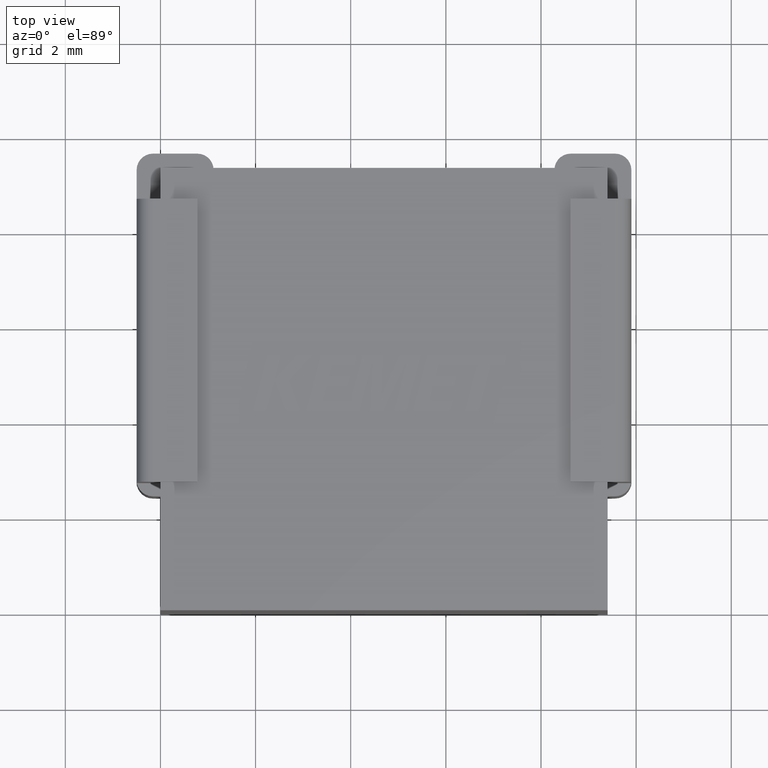
[diagram: clean part render]
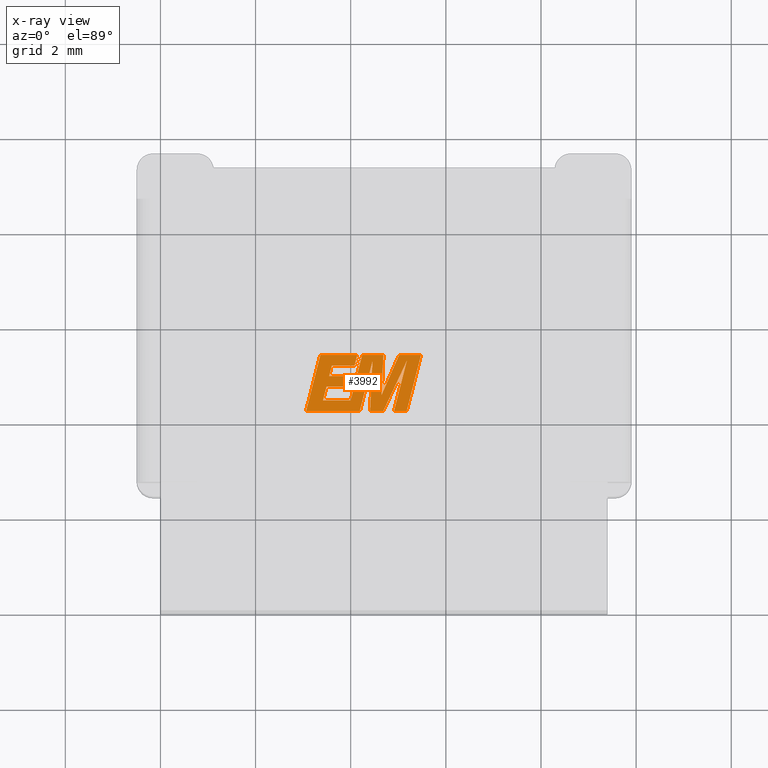
[diagram: x-ray — body ghosted, one internal face saturated and labeled with its STEP entity id]
A machine part, top view, then the same camera in x-ray: the body is ghosted and one INTERNAL B-rep face — a face not visible from any outside direction — is saturated and labeled: STEP entity #3992.
In plain terms, the highlighted planar face has unit normal (0, 0, -1).
Its self-contained STEP definition (entity closure, byte-faithful):
#22 = LINE ( 'NONE', #2866, #2343 ) ;
#36 = LINE ( 'NONE', #2173, #4210 ) ;
#38 = DIRECTION ( 'NONE',  ( -1.000000000000000000, 0.000000000000000000, 0.000000000000000000 ) ) ;
#59 = EDGE_CURVE ( 'NONE', #4463, #4007, #1487, .T. ) ;
#79 = LINE ( 'NONE', #1834, #4469 ) ;
#164 = DIRECTION ( 'NONE',  ( 0.000000000000000000, 0.000000000000000000, -1.000000000000000000 ) ) ;
#176 = EDGE_CURVE ( 'NONE', #3254, #557, #1877, .T. ) ;
#180 = DIRECTION ( 'NONE',  ( 0.2470122048320955999, 0.9690123686847278428, 0.000000000000000000 ) ) ;
#262 = DIRECTION ( 'NONE',  ( 0.2449294970219921819, 0.9695408921177867123, 0.000000000000000000 ) ) ;
#264 = DIRECTION ( 'NONE',  ( 0.2498128263339639277, 0.9682941452880093891, 0.000000000000000000 ) ) ;
#287 = EDGE_CURVE ( 'NONE', #717, #292, #36, .T. ) ;
#288 = LINE ( 'NONE', #1319, #2571 ) ;
#291 = EDGE_CURVE ( 'NONE', #585, #2966, #3868, .T. ) ;
#292 = VERTEX_POINT ( 'NONE', #312 ) ;
#309 = CARTESIAN_POINT ( 'NONE',  ( 4.241897461586543017, 5.366262998339186296, 0.000000000000000000 ) ) ;
#312 = CARTESIAN_POINT ( 'NONE',  ( 4.687921501937565516, 5.366262998339186296, 0.000000000000000000 ) ) ;
#317 = DIRECTION ( 'NONE',  ( 0.2441965488560581266, 0.9697257578959067592, 0.000000000000000000 ) ) ;
#474 = DIRECTION ( 'NONE',  ( -1.000000000000000000, 0.000000000000000000, 0.000000000000000000 ) ) ;
#475 = EDGE_CURVE ( 'NONE', #2202, #763, #3473, .T. ) ;
#477 = ORIENTED_EDGE ( 'NONE', *, *, #1860, .F. ) ;
#517 = EDGE_CURVE ( 'NONE', #2524, #2413, #288, .T. ) ;
#520 = ORIENTED_EDGE ( 'NONE', *, *, #59, .F. ) ;
#531 = CARTESIAN_POINT ( 'NONE',  ( 3.941175055195856647, 4.703325914129568019, 0.000000000000000000 ) ) ;
#544 = CARTESIAN_POINT ( 'NONE',  ( 3.062312293114819894, 4.184999999999998721, 0.000000000000000000 ) ) ;
#557 = VERTEX_POINT ( 'NONE', #3028 ) ;
#559 = VECTOR ( 'NONE', #1431, 1000.000000000000227 ) ;
#566 = EDGE_CURVE ( 'NONE', #644, #4578, #3863, .T. ) ;
#567 = CARTESIAN_POINT ( 'NONE',  ( 4.406076379557794631, 4.185000000000000497, 0.000000000000000000 ) ) ;
#585 = VERTEX_POINT ( 'NONE', #2842 ) ;
#594 = CARTESIAN_POINT ( 'NONE',  ( 3.941175055195856647, 4.703325914129568019, 0.000000000000000000 ) ) ;
#620 = ORIENTED_EDGE ( 'NONE', *, *, #475, .F. ) ;
#644 = VERTEX_POINT ( 'NONE', #2526 ) ;
#659 = LINE ( 'NONE', #309, #706 ) ;
#663 = EDGE_CURVE ( 'NONE', #1832, #2451, #659, .T. ) ;
#674 = CARTESIAN_POINT ( 'NONE',  ( 5.018742207986084836, 5.366262998339186296, 0.000000000000000000 ) ) ;
#678 = EDGE_CURVE ( 'NONE', #2451, #2043, #2547, .T. ) ;
#698 = VECTOR ( 'NONE', #1975, 1000.000000000000000 ) ;
#706 = VECTOR ( 'NONE', #1736, 1000.000000000000114 ) ;
#717 = VERTEX_POINT ( 'NONE', #4337 ) ;
#735 = VECTOR ( 'NONE', #474, 1000.000000000000000 ) ;
#763 = VERTEX_POINT ( 'NONE', #3279 ) ;
#766 = VECTOR ( 'NONE', #38, 1000.000000000000000 ) ;
#789 = ORIENTED_EDGE ( 'NONE', *, *, #287, .F. ) ;
#820 = EDGE_CURVE ( 'NONE', #2413, #1497, #4090, .T. ) ;
#948 = VECTOR ( 'NONE', #1072, 1000.000000000000000 ) ;
#963 = CARTESIAN_POINT ( 'NONE',  ( 3.546948208617191955, 4.921700921080024216, 0.000000000000000000 ) ) ;
#1003 = VECTOR ( 'NONE', #4025, 1000.000000000000227 ) ;
#1031 = CARTESIAN_POINT ( 'NONE',  ( 4.458341037021869013, 5.236647398152669552, 0.000000000000000000 ) ) ;
#1035 = EDGE_CURVE ( 'NONE', #4310, #3297, #4431, .T. ) ;
#1050 = CARTESIAN_POINT ( 'NONE',  ( 3.417541273402175950, 4.409736001990648191, 0.000000000000000000 ) ) ;
#1063 = CARTESIAN_POINT ( 'NONE',  ( 3.363693899958266620, 5.366262998339186296, 0.000000000000000000 ) ) ;
#1072 = DIRECTION ( 'NONE',  ( 1.000000000000000000, 4.326970063275049302E-15, 0.000000000000000000 ) ) ;
#1140 = DIRECTION ( 'NONE',  ( -0.4025369940904171551, -0.9154037187976961087, 0.000000000000000000 ) ) ;
#1141 = ORIENTED_EDGE ( 'NONE', *, *, #663, .F. ) ;
#1209 = EDGE_CURVE ( 'NONE', #3297, #1773, #4255, .T. ) ;
#1239 = EDGE_CURVE ( 'NONE', #1279, #3254, #22, .T. ) ;
#1279 = VERTEX_POINT ( 'NONE', #2464 ) ;
#1319 = CARTESIAN_POINT ( 'NONE',  ( 3.491709191532832879, 4.703325914129568019, 0.000000000000000000 ) ) ;
#1396 = LINE ( 'NONE', #1444, #2482 ) ;
#1431 = DIRECTION ( 'NONE',  ( -0.2472157836259321062, -0.9689604513736440605, 0.000000000000000000 ) ) ;
#1444 = CARTESIAN_POINT ( 'NONE',  ( 4.137431837443122262, 5.366262998339186296, 0.000000000000000000 ) ) ;
#1470 = VECTOR ( 'NONE', #1548, 1000.000000000000000 ) ;
#1477 = LINE ( 'NONE', #3610, #1470 ) ;
#1487 = LINE ( 'NONE', #3979, #4062 ) ;
#1497 = VERTEX_POINT ( 'NONE', #2507 ) ;
#1548 = DIRECTION ( 'NONE',  ( 1.000000000000000000, 0.000000000000000000, 0.000000000000000000 ) ) ;
#1556 = VECTOR ( 'NONE', #4089, 1000.000000000000000 ) ;
#1591 = LINE ( 'NONE', #2704, #1556 ) ;
#1619 = ORIENTED_EDGE ( 'NONE', *, *, #291, .F. ) ;
#1736 = DIRECTION ( 'NONE',  ( -0.2469556664503825827, -0.9690267792006819203, 0.000000000000000000 ) ) ;
#1740 = VECTOR ( 'NONE', #2138, 1000.000000000000114 ) ;
#1773 = VERTEX_POINT ( 'NONE', #674 ) ;
#1832 = VERTEX_POINT ( 'NONE', #4222 ) ;
#1834 = CARTESIAN_POINT ( 'NONE',  ( 5.018742207986084836, 5.366262998339186296, 0.000000000000000000 ) ) ;
#1851 = CARTESIAN_POINT ( 'NONE',  ( 3.491709191532832879, 4.703325914129568019, 0.000000000000000000 ) ) ;
#1860 = EDGE_CURVE ( 'NONE', #2966, #3604, #2819, .T. ) ;
#1877 = LINE ( 'NONE', #4377, #1003 ) ;
#1905 = EDGE_LOOP ( 'NONE', ( #2805, #2755, #1944, #2118, #3038, #4244, #477, #1619, #1948, #3360, #3252, #520, #2144, #620, #4102, #2276, #3303, #2035, #4546, #1141, #3187, #789, #2057 ) ) ;
#1906 = VECTOR ( 'NONE', #264, 1000.000000000000114 ) ;
#1944 = ORIENTED_EDGE ( 'NONE', *, *, #3715, .F. ) ;
#1948 = ORIENTED_EDGE ( 'NONE', *, *, #3335, .F. ) ;
#1953 = CARTESIAN_POINT ( 'NONE',  ( 3.417541273402175950, 4.409736001990648191, 0.000000000000000000 ) ) ;
#1975 = DIRECTION ( 'NONE',  ( 1.000000000000000000, 0.000000000000000000, 0.000000000000000000 ) ) ;
#2035 = ORIENTED_EDGE ( 'NONE', *, *, #2701, .F. ) ;
#2043 = VERTEX_POINT ( 'NONE', #1050 ) ;
#2057 = ORIENTED_EDGE ( 'NONE', *, *, #4539, .F. ) ;
#2068 = CARTESIAN_POINT ( 'NONE',  ( 0.5575948574780167366, -0.08786507851400812696, 0.000000000000000000 ) ) ;
#2102 = CARTESIAN_POINT ( 'NONE',  ( 4.190616825896835707, 4.185000000000000497, 0.000000000000000000 ) ) ;
#2105 = CARTESIAN_POINT ( 'NONE',  ( 5.478097366396747603, 5.366262998339186296, 0.000000000000000000 ) ) ;
#2118 = ORIENTED_EDGE ( 'NONE', *, *, #176, .F. ) ;
#2138 = DIRECTION ( 'NONE',  ( 0.2454965240435175722, 0.9693974709491203212, 0.000000000000000000 ) ) ;
#2144 = ORIENTED_EDGE ( 'NONE', *, *, #2813, .F. ) ;
#2149 = DIRECTION ( 'NONE',  ( 0.2467071005570951048, 0.9690900920630193260, 0.000000000000000000 ) ) ;
#2173 = CARTESIAN_POINT ( 'NONE',  ( 4.647643891802699656, 4.522353534958212684, 0.000000000000000000 ) ) ;
#2181 = CARTESIAN_POINT ( 'NONE',  ( 5.176980077148535031, 4.185000000000000497, 0.000000000000000000 ) ) ;
#2184 = EDGE_CURVE ( 'NONE', #4007, #644, #1396, .T. ) ;
#2202 = VERTEX_POINT ( 'NONE', #3205 ) ;
#2258 = LINE ( 'NONE', #3268, #735 ) ;
#2276 = ORIENTED_EDGE ( 'NONE', *, *, #820, .F. ) ;
#2343 = VECTOR ( 'NONE', #2552, 1000.000000000000227 ) ;
#2390 = FACE_OUTER_BOUND ( 'NONE', #1905, .T. ) ;
#2394 = LINE ( 'NONE', #1953, #2578 ) ;
#2407 = LINE ( 'NONE', #4534, #698 ) ;
#2410 = VECTOR ( 'NONE', #180, 1000.000000000000000 ) ;
#2413 = VERTEX_POINT ( 'NONE', #594 ) ;
#2451 = VERTEX_POINT ( 'NONE', #2529 ) ;
#2456 = DIRECTION ( 'NONE',  ( 1.000000000000000000, 0.000000000000000000, 0.000000000000000000 ) ) ;
#2464 = CARTESIAN_POINT ( 'NONE',  ( 4.685287223601915407, 4.185000000000000497, 0.000000000000000000 ) ) ;
#2482 = VECTOR ( 'NONE', #4192, 1000.000000000000000 ) ;
#2507 = CARTESIAN_POINT ( 'NONE',  ( 3.996477763064307798, 4.921700921080024216, 0.000000000000000000 ) ) ;
#2524 = VERTEX_POINT ( 'NONE', #1851 ) ;
#2526 = CARTESIAN_POINT ( 'NONE',  ( 3.363693899958266620, 5.366262998339186296, 0.000000000000000000 ) ) ;
#2529 = CARTESIAN_POINT ( 'NONE',  ( 3.998127354370429654, 4.409736001990648191, 0.000000000000000000 ) ) ;
#2547 = LINE ( 'NONE', #4393, #3003 ) ;
#2552 = DIRECTION ( 'NONE',  ( 0.4239162807876043493, 0.9057013784262475387, 0.000000000000000000 ) ) ;
#2571 = VECTOR ( 'NONE', #4489, 1000.000000000000000 ) ;
#2578 = VECTOR ( 'NONE', #262, 1000.000000000000227 ) ;
#2659 = EDGE_CURVE ( 'NONE', #3604, #1279, #2407, .T. ) ;
#2701 = EDGE_CURVE ( 'NONE', #2043, #2524, #2394, .T. ) ;
#2704 = CARTESIAN_POINT ( 'NONE',  ( 4.687921501937565516, 5.366262998339186296, 0.000000000000000000 ) ) ;
#2755 = ORIENTED_EDGE ( 'NONE', *, *, #1035, .F. ) ;
#2805 = ORIENTED_EDGE ( 'NONE', *, *, #1209, .F. ) ;
#2813 = EDGE_CURVE ( 'NONE', #763, #4463, #1477, .T. ) ;
#2819 = LINE ( 'NONE', #1031, #4281 ) ;
#2842 = CARTESIAN_POINT ( 'NONE',  ( 4.190616825896835707, 4.185000000000000497, 0.000000000000000000 ) ) ;
#2866 = CARTESIAN_POINT ( 'NONE',  ( 4.685287223601915407, 4.185000000000000497, 0.000000000000000000 ) ) ;
#2966 = VERTEX_POINT ( 'NONE', #3398 ) ;
#3003 = VECTOR ( 'NONE', #3636, 1000.000000000000000 ) ;
#3028 = CARTESIAN_POINT ( 'NONE',  ( 4.910835397470394881, 4.185000000000000497, 0.000000000000000000 ) ) ;
#3038 = ORIENTED_EDGE ( 'NONE', *, *, #1239, .F. ) ;
#3131 = CARTESIAN_POINT ( 'NONE',  ( 4.004193900724418498, 4.184999999999998721, 0.000000000000000000 ) ) ;
#3187 = ORIENTED_EDGE ( 'NONE', *, *, #3995, .F. ) ;
#3205 = CARTESIAN_POINT ( 'NONE',  ( 3.546948208617191955, 4.921700921080024216, 0.000000000000000000 ) ) ;
#3252 = ORIENTED_EDGE ( 'NONE', *, *, #2184, .F. ) ;
#3254 = VERTEX_POINT ( 'NONE', #3779 ) ;
#3268 = CARTESIAN_POINT ( 'NONE',  ( 3.996477763064307798, 4.921700921080024216, 0.000000000000000000 ) ) ;
#3279 = CARTESIAN_POINT ( 'NONE',  ( 3.603633006501429925, 5.141415651999263758, 0.000000000000000000 ) ) ;
#3297 = VERTEX_POINT ( 'NONE', #2105 ) ;
#3303 = ORIENTED_EDGE ( 'NONE', *, *, #517, .F. ) ;
#3335 = EDGE_CURVE ( 'NONE', #4578, #585, #3529, .T. ) ;
#3360 = ORIENTED_EDGE ( 'NONE', *, *, #566, .F. ) ;
#3398 = CARTESIAN_POINT ( 'NONE',  ( 4.458341037021869013, 5.236647398152669552, 0.000000000000000000 ) ) ;
#3473 = LINE ( 'NONE', #963, #1906 ) ;
#3503 = DIRECTION ( 'NONE',  ( 0.04767314008597915015, 0.9988629894606880777, 0.000000000000000000 ) ) ;
#3529 = LINE ( 'NONE', #3131, #948 ) ;
#3553 = CARTESIAN_POINT ( 'NONE',  ( 4.080810730342917303, 5.141415651999263758, 0.000000000000000000 ) ) ;
#3604 = VERTEX_POINT ( 'NONE', #567 ) ;
#3610 = CARTESIAN_POINT ( 'NONE',  ( 3.603633006501429925, 5.141415651999263758, 0.000000000000000000 ) ) ;
#3636 = DIRECTION ( 'NONE',  ( -1.000000000000000000, 0.000000000000000000, 0.000000000000000000 ) ) ;
#3712 = VECTOR ( 'NONE', #2456, 1000.000000000000000 ) ;
#3715 = EDGE_CURVE ( 'NONE', #557, #4310, #4044, .T. ) ;
#3727 = CARTESIAN_POINT ( 'NONE',  ( 4.910835397470394881, 4.185000000000000497, 0.000000000000000000 ) ) ;
#3752 = CARTESIAN_POINT ( 'NONE',  ( 5.176980077148535031, 4.185000000000000497, 0.000000000000000000 ) ) ;
#3779 = CARTESIAN_POINT ( 'NONE',  ( 5.179884376905129706, 5.241711770258382863, 0.000000000000000000 ) ) ;
#3809 = PLANE ( 'NONE',  #4603 ) ;
#3863 = LINE ( 'NONE', #1063, #559 ) ;
#3868 = LINE ( 'NONE', #2102, #4289 ) ;
#3953 = CARTESIAN_POINT ( 'NONE',  ( 5.478097366396747603, 5.366262998339186296, 0.000000000000000000 ) ) ;
#3979 = CARTESIAN_POINT ( 'NONE',  ( 4.080810730342917303, 5.141415651999263758, 0.000000000000000000 ) ) ;
#3992 = ADVANCED_FACE ( 'NONE', ( #2390 ), #3809, .T. ) ;
#3995 = EDGE_CURVE ( 'NONE', #292, #1832, #1591, .T. ) ;
#4007 = VERTEX_POINT ( 'NONE', #4132 ) ;
#4025 = DIRECTION ( 'NONE',  ( -0.2467376755553434275, -0.9690823078880069774, 0.000000000000000000 ) ) ;
#4044 = LINE ( 'NONE', #3727, #3712 ) ;
#4062 = VECTOR ( 'NONE', #317, 1000.000000000000000 ) ;
#4089 = DIRECTION ( 'NONE',  ( -1.000000000000000000, 0.000000000000000000, 0.000000000000000000 ) ) ;
#4090 = LINE ( 'NONE', #531, #1740 ) ;
#4102 = ORIENTED_EDGE ( 'NONE', *, *, #4540, .F. ) ;
#4132 = CARTESIAN_POINT ( 'NONE',  ( 4.137431837443122262, 5.366262998339186296, 0.000000000000000000 ) ) ;
#4192 = DIRECTION ( 'NONE',  ( -1.000000000000000000, 0.000000000000000000, 0.000000000000000000 ) ) ;
#4210 = VECTOR ( 'NONE', #3503, 1000.000000000000114 ) ;
#4222 = CARTESIAN_POINT ( 'NONE',  ( 4.241897461586543017, 5.366262998339186296, 0.000000000000000000 ) ) ;
#4244 = ORIENTED_EDGE ( 'NONE', *, *, #2659, .F. ) ;
#4255 = LINE ( 'NONE', #3953, #766 ) ;
#4281 = VECTOR ( 'NONE', #4574, 1000.000000000000000 ) ;
#4289 = VECTOR ( 'NONE', #2149, 1000.000000000000227 ) ;
#4310 = VERTEX_POINT ( 'NONE', #2181 ) ;
#4337 = CARTESIAN_POINT ( 'NONE',  ( 4.647643891802699656, 4.522353534958212684, 0.000000000000000000 ) ) ;
#4377 = CARTESIAN_POINT ( 'NONE',  ( 5.179884376905129706, 5.241711770258382863, 0.000000000000000000 ) ) ;
#4393 = CARTESIAN_POINT ( 'NONE',  ( 3.998127354370429654, 4.409736001990648191, 0.000000000000000000 ) ) ;
#4431 = LINE ( 'NONE', #3752, #2410 ) ;
#4463 = VERTEX_POINT ( 'NONE', #3553 ) ;
#4469 = VECTOR ( 'NONE', #1140, 1000.000000000000114 ) ;
#4486 = DIRECTION ( 'NONE',  ( -1.000000000000000000, 0.000000000000000000, 0.000000000000000000 ) ) ;
#4489 = DIRECTION ( 'NONE',  ( 1.000000000000000000, 0.000000000000000000, 0.000000000000000000 ) ) ;
#4534 = CARTESIAN_POINT ( 'NONE',  ( 4.406076379557794631, 4.185000000000000497, 0.000000000000000000 ) ) ;
#4539 = EDGE_CURVE ( 'NONE', #1773, #717, #79, .T. ) ;
#4540 = EDGE_CURVE ( 'NONE', #1497, #2202, #2258, .T. ) ;
#4546 = ORIENTED_EDGE ( 'NONE', *, *, #678, .F. ) ;
#4574 = DIRECTION ( 'NONE',  ( -0.04963663024951132235, -0.9987673427467846921, 0.000000000000000000 ) ) ;
#4578 = VERTEX_POINT ( 'NONE', #544 ) ;
#4603 = AXIS2_PLACEMENT_3D ( 'NONE', #2068, #164, #4486 ) ;